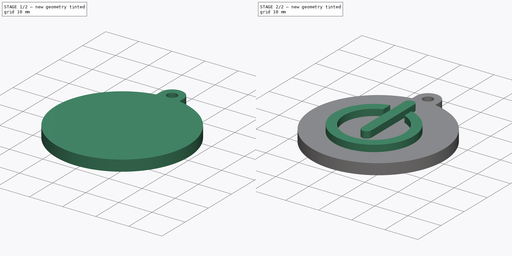
[diagram: build sequence overview — one tinted view per stage of 2, left to right]
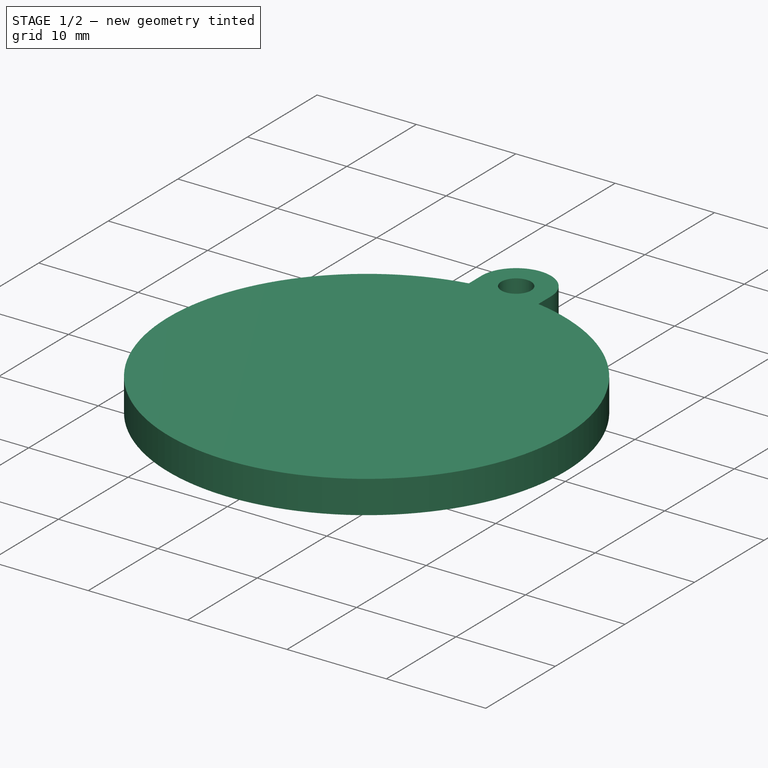
[diagram: stage 1 of 2 — iso view after this stage's code; geometry added in this stage tinted green]
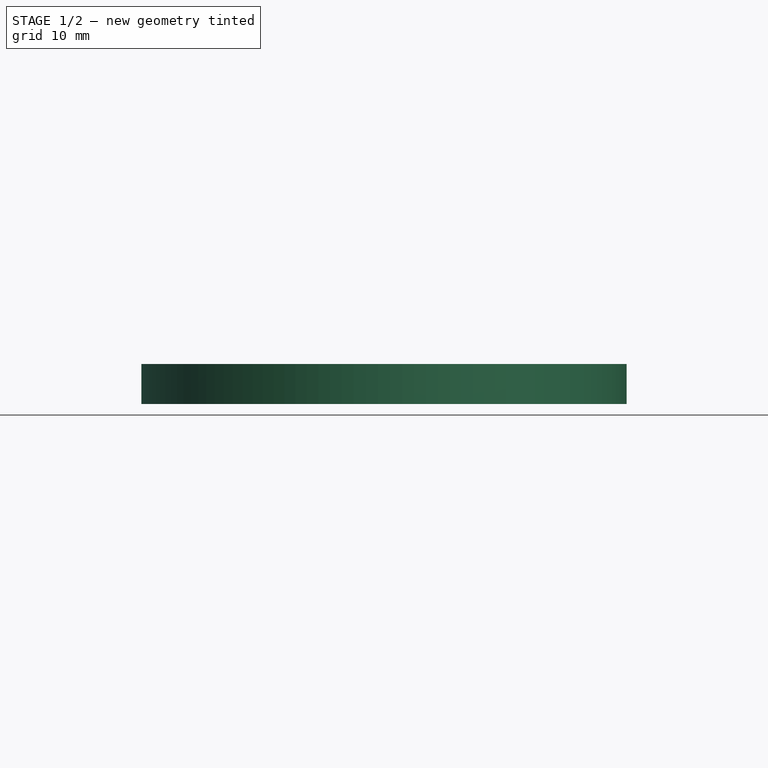
[diagram: stage 1 of 2 — front view after this stage's code; geometry added in this stage tinted green]
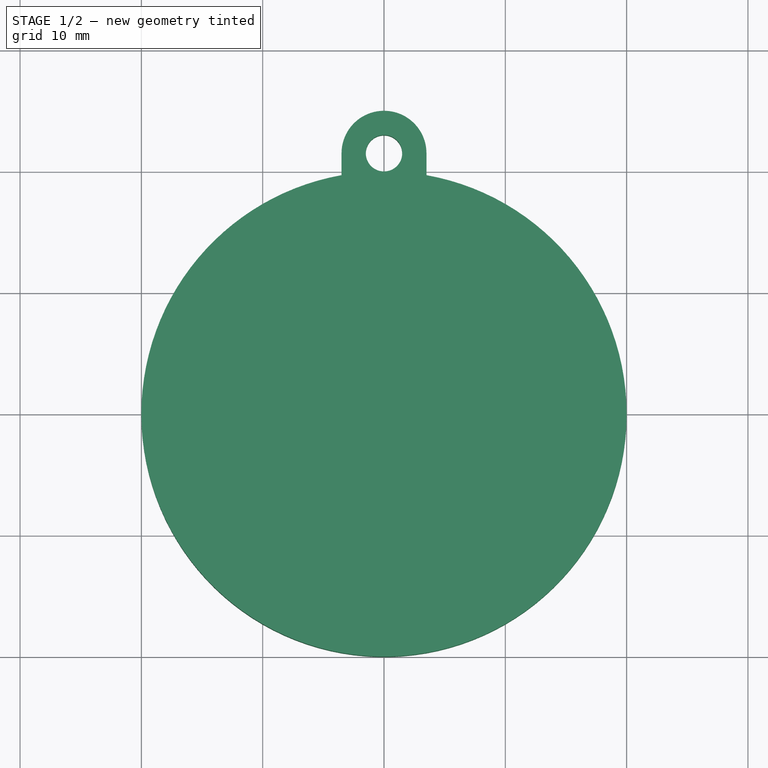
[diagram: stage 1 of 2 — top view after this stage's code; geometry added in this stage tinted green]
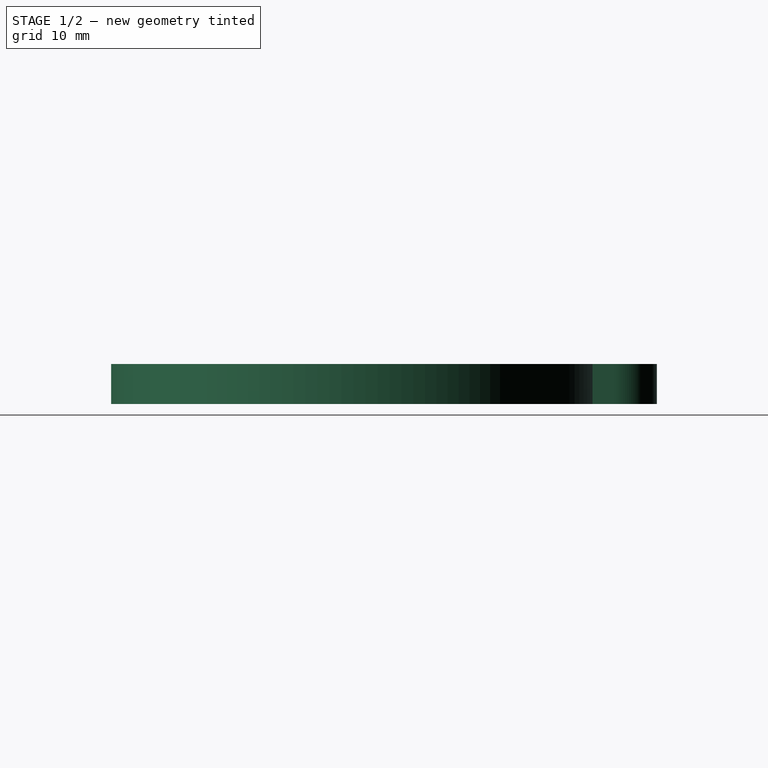
[diagram: stage 1 of 2 — right view after this stage's code; geometry added in this stage tinted green]
FCSTD DOCUMENT  (FreeCAD 0.14R3702 (Git))
Label: T5-ej3
License: CreativeCommons Attribution-ShareAlike
LicenseURL: http://creativecommons.org/licenses/by-sa/4.0/
objects: Part::Feature×2, App::DocumentObjectGroup×2, Sketcher::SketchObject×2, Part::Extrusion×1, PartDesign::Pocket×1, PartDesign::Pad×1
note: 9 computed .brp shape members not serialized (recipe doc carries the construction recipe); baked Part::Feature solids carry a one-line shape summary decoded from their .brp

FEATURE [Part::Feature] Sweep  label="key-ring-model-1"
  Placement = pos=(-1.2,30.2546,1.6391) rot=(0.333333,0.881918,0.333333;1.69612rad)
  shape: bbox 3.31 x 27.02 x 26.33 mm, 4 faces (baked)
FEATURE [Part::Feature] Cut  label="key-model-1"
  Placement = pos=(-5.46976,36.5266,0) rot=(0,0,1;0.517888rad)
  shape: bbox 49.82 x 36.6 x 2.3 mm, 44 faces (baked)
FEATURE [App::DocumentObjectGroup] Group  label="Assembly"
  Group = -> [Sweep,Cut]
FEATURE [Part::Extrusion] Extrude  label="casino-chip"
  Dir = (0,0,3.3)
  Solid = true
FEATURE [Sketcher::SketchObject] Sketch001
  Placement = pos=(0,0,3.3) rot=(0,0,1;0rad)
  Support = -> Extrude [Face6]
  sketch-geometry (1):
    g0: Circle CenterX=0 CenterY=21.5 CenterZ=0 NormalX=0 NormalY=0 NormalZ=1 Radius=1.5
  constraints (3):
    c: DistanceY(g-1,g0) = 21.5
    c: PointOnObject(g0,g-2)
    c: Radius(g0) = 1.5
FEATURE [PartDesign::Pocket] Pocket  label="drill"
  Length = 5
  Sketch = -> Sketch001
  Type = 1
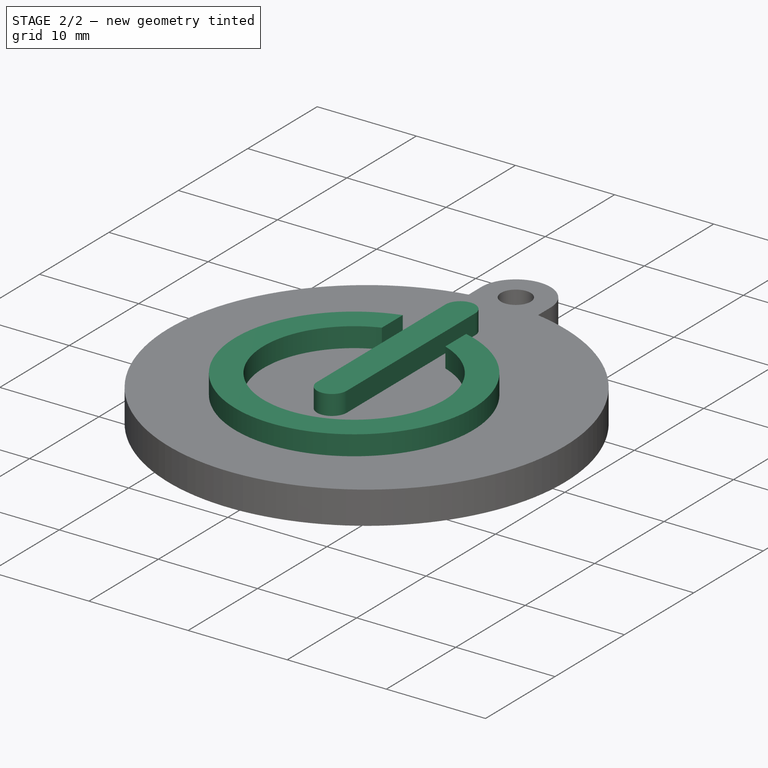
[diagram: stage 2 of 2 — iso view after this stage's code; geometry added in this stage tinted green]
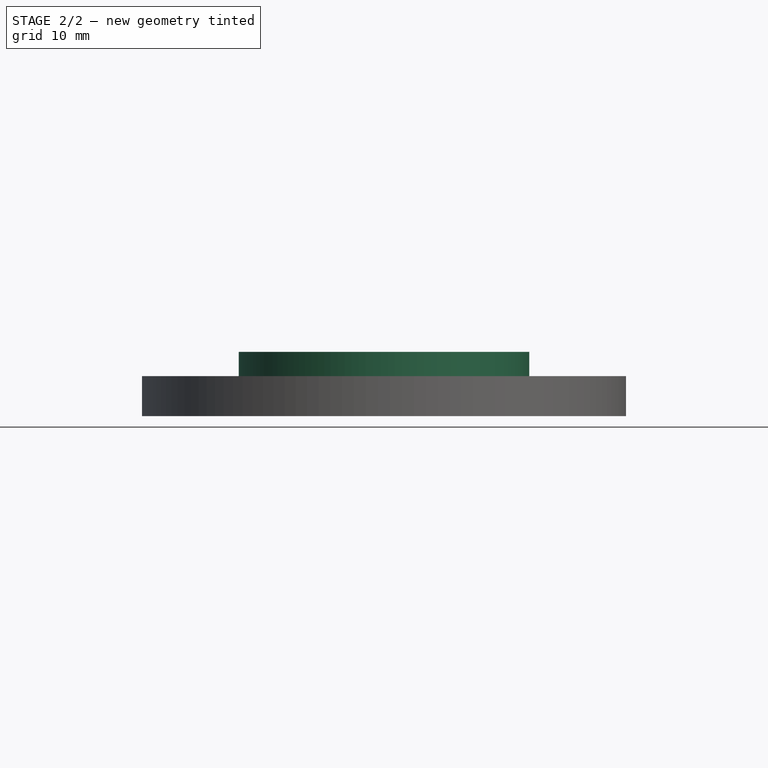
[diagram: stage 2 of 2 — front view after this stage's code; geometry added in this stage tinted green]
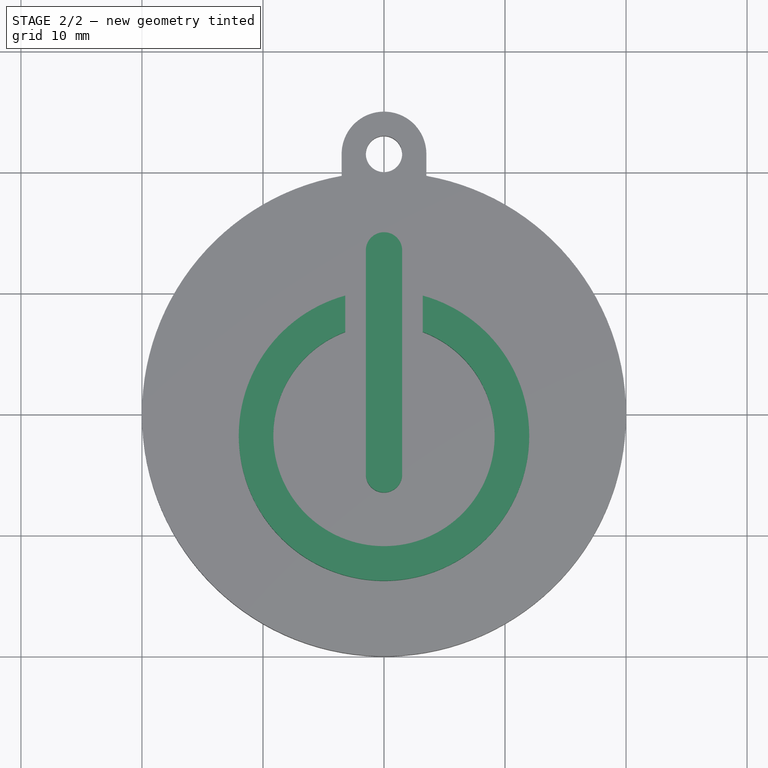
[diagram: stage 2 of 2 — top view after this stage's code; geometry added in this stage tinted green]
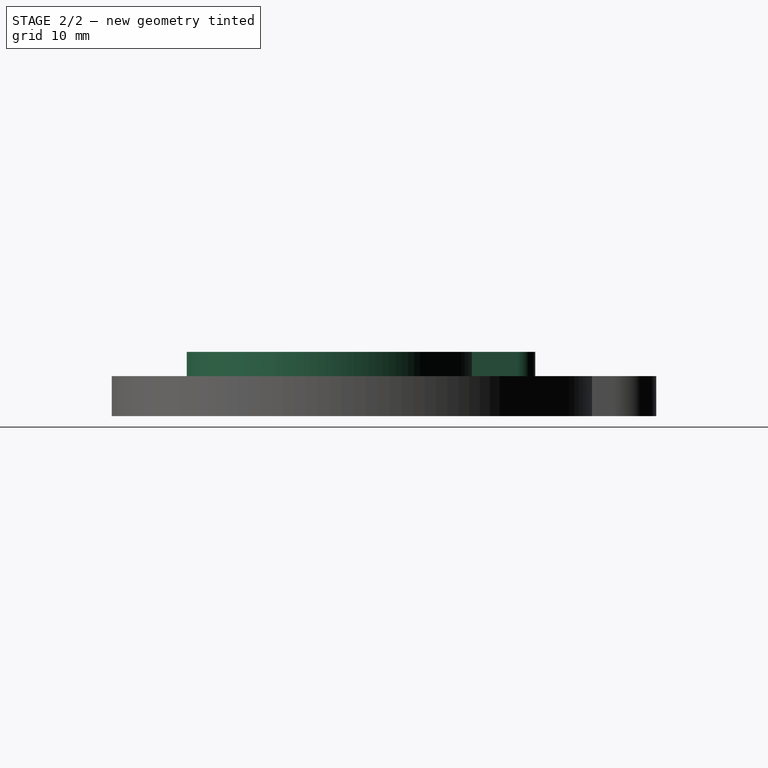
[diagram: stage 2 of 2 — right view after this stage's code; geometry added in this stage tinted green]
FEATURE [Sketcher::SketchObject] Sketch002
  Placement = pos=(0,0,3.3) rot=(0,0,1;0rad)
  Support = -> Pocket [Face5]
  sketch-geometry (13):
    g0: LineSegment [constr] StartX=0 StartY=0 StartZ=0 EndX=0 EndY=-1.8 EndZ=0
    g1: ArcOfCircle CenterX=0 CenterY=-1.8 CenterZ=0 NormalX=0 NormalY=0 NormalZ=1 Radius=12 StartAngle=1.84073 EndAngle=7.58405
    g2: ArcOfCircle CenterX=0 CenterY=-1.8 CenterZ=0 NormalX=0 NormalY=0 NormalZ=1 Radius=9.1437 StartAngle=1.92833 EndAngle=7.49644
    g3: LineSegment [constr] StartX=0 StartY=0 StartZ=0 EndX=0 EndY=-5 EndZ=0
    g4: LineSegment [constr] StartX=0 StartY=-5 StartZ=0 EndX=0 EndY=13.5 EndZ=0
    g5: LineSegment [constr] StartX=0 StartY=13.5 StartZ=0 EndX=1.5 EndY=13.5 EndZ=0
    g6: ArcOfCircle CenterX=0 CenterY=-5 CenterZ=0 NormalX=0 NormalY=0 NormalZ=1 Radius=1.5 StartAngle=3.14159 EndAngle=6.28319
    g7: ArcOfCircle CenterX=0 CenterY=13.5 CenterZ=0 NormalX=0 NormalY=0 NormalZ=1 Radius=1.5 StartAngle=6.28319 EndAngle=9.42478
    g8: LineSegment StartX=1.5 StartY=-5 StartZ=0 EndX=1.5 EndY=13.5 EndZ=0
    g9: LineSegment StartX=-1.5 StartY=-5 StartZ=0 EndX=-1.5 EndY=13.5 EndZ=0
    g10: LineSegment StartX=-3.2 StartY=9.76547 StartZ=0 EndX=-3.2 EndY=6.76547 EndZ=0
    g11: LineSegment [constr] StartX=-3.2 StartY=9.76547 StartZ=0 EndX=-1.5 EndY=9.76547 EndZ=0
    g12: LineSegment StartX=3.2 StartY=6.76547 StartZ=0 EndX=3.2 EndY=9.76547 EndZ=0
  constraints (41):
    c: Coincident(g0,g-1)
    c: DistanceY(g0) = -1.8
    c: Coincident(g1,g0)
    c: Radius(g1) = 12
    c: Coincident(g2,g0)
    c: Coincident(g3,g-1)
    c: Vertical(g3)
    c: DistanceY(g3) = -5
    c: Coincident(g4,g3)
    c: Vertical(g4)
    c: DistanceY(g4) = 18.5
    c: Coincident(g5,g4)
    c: Horizontal(g5)
    c: DistanceX(g5) = 1.5
    c: Tangent(g6,g8)
    c: Tangent(g6,g9)
    c: Tangent(g7,g8)
    c: Tangent(g7,g9)
    c: Coincident(g6,g9)
    c: Coincident(g6,g8)
    c: Coincident(g8,g7)
    c: Coincident(g9,g7)
    c: Vertical(g8)
    c: Equal(g6,g7)
    c: Coincident(g6,g3)
    c: PointOnObject(g7,g5)
    c: Radius(g6) = 1.5
    c: Vertical(g10)
    c: PointOnObject(g10,g1)
    c: Coincident(g11,g10)
    c: Horizontal(g11)
    c: PointOnObject(g11,g9)
    c: DistanceX(g11) = 1.7
    c: Coincident(g2,g10)
    c: PointOnObject(g1,g11)
    c: Coincident(g12,g2)
    c: Coincident(g12,g1)
    c: DistanceY(g12) = 3
    c: Vertical(g12)
    c: Vertical(g0)
    c: DistanceY(g10) = -3
FEATURE [PartDesign::Pad] Pad
  Length = 2
  Length2 = 100
  Sketch = -> Sketch002
  Type = 0
FEATURE [App::DocumentObjectGroup] Group001  label="Casino-chip-src"
  Group = -> [Pocket,Extrude,Pad]
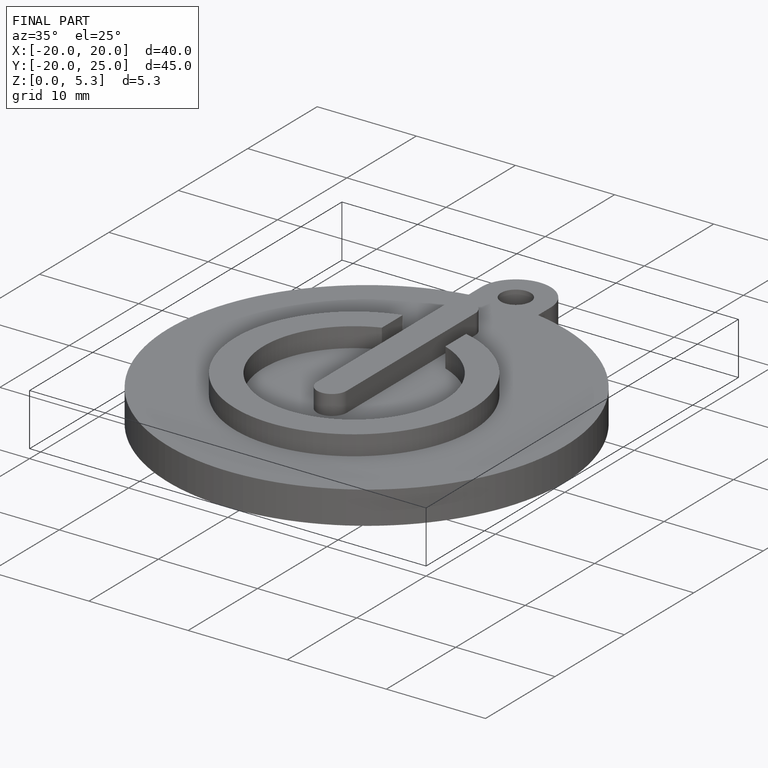
[diagram: finished part — iso view with bounding-box wireframe]
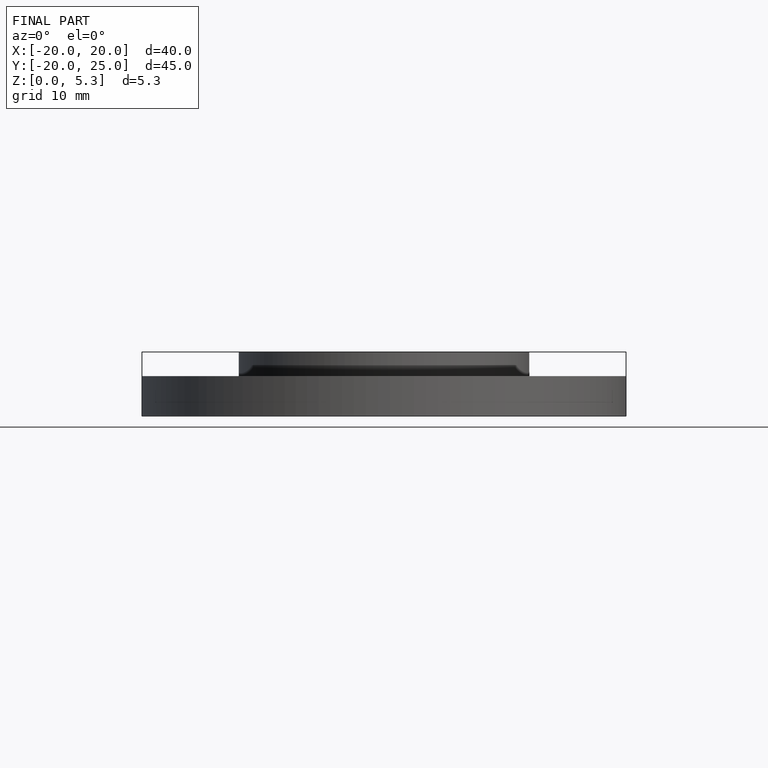
[diagram: finished part — front view with bounding-box wireframe]
